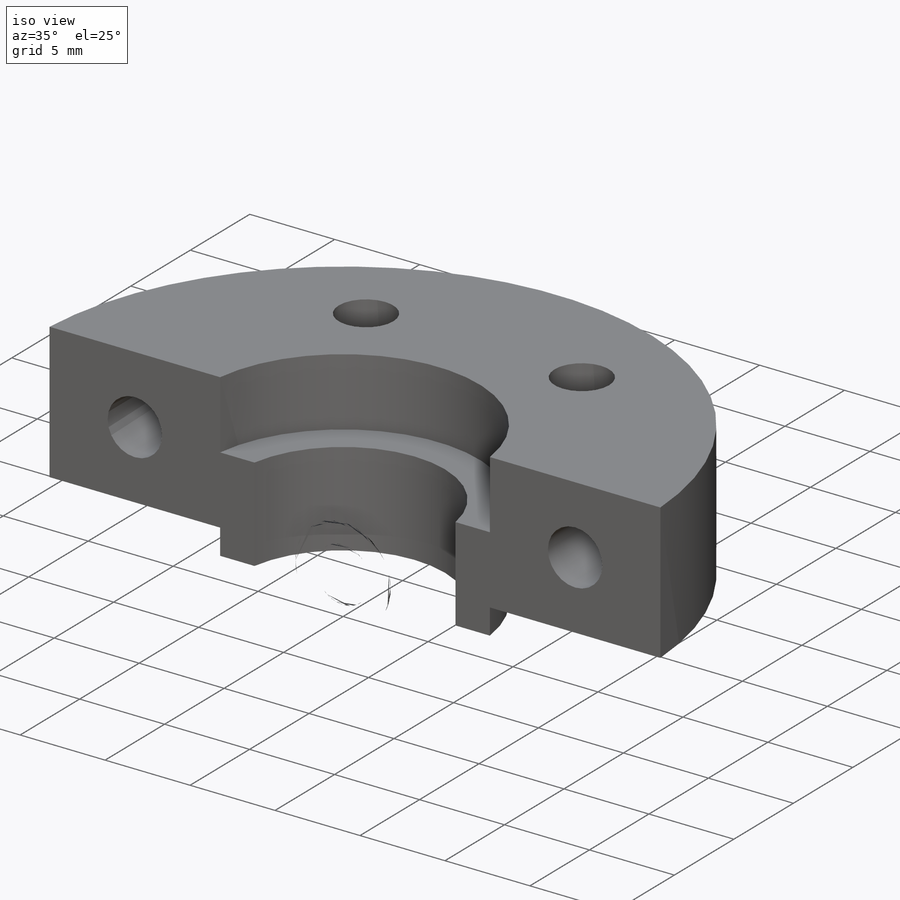
[diagram: iso view]
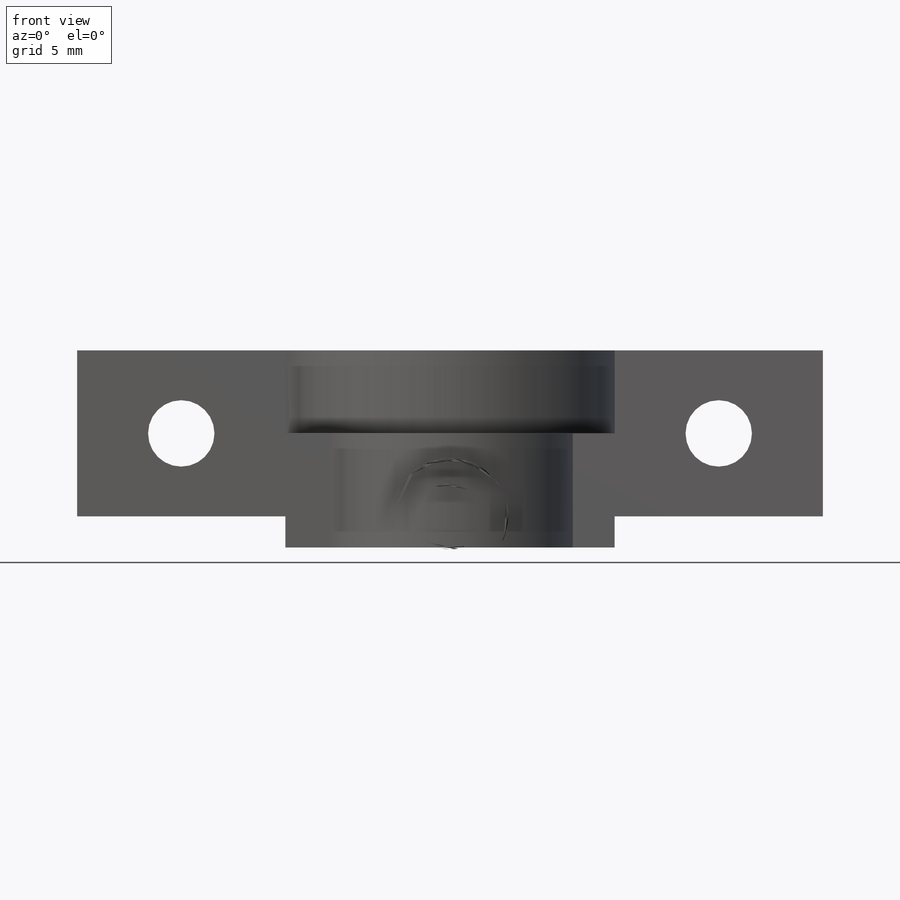
[diagram: front view]
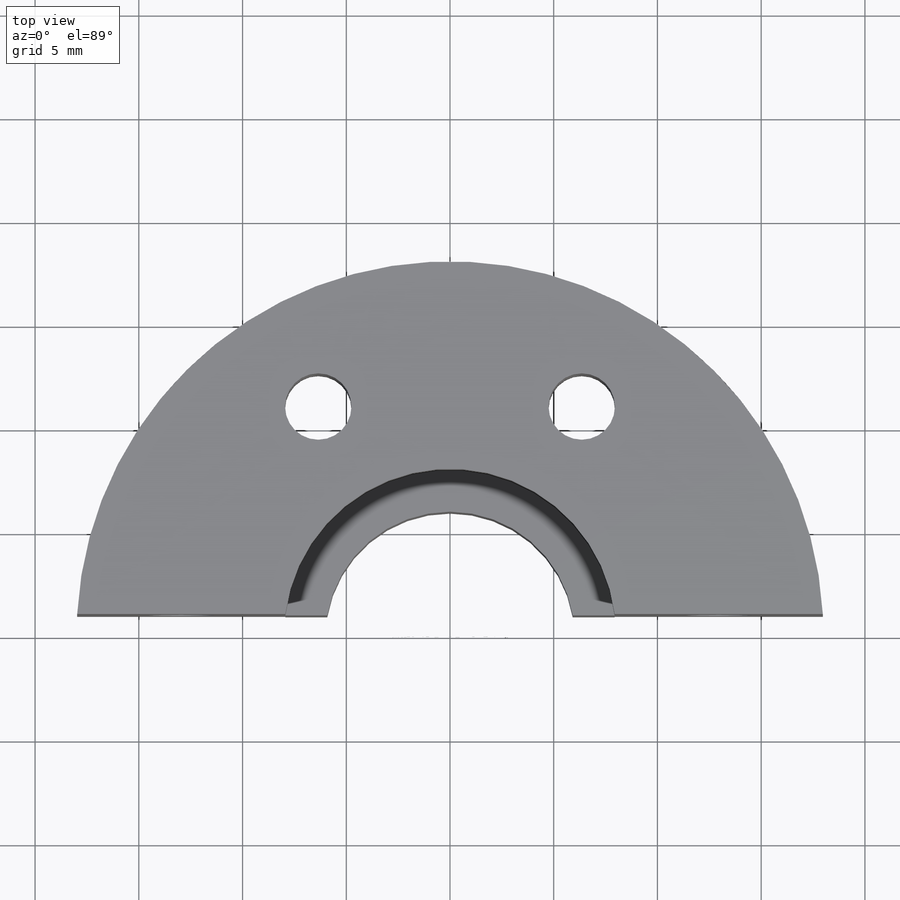
[diagram: top view]
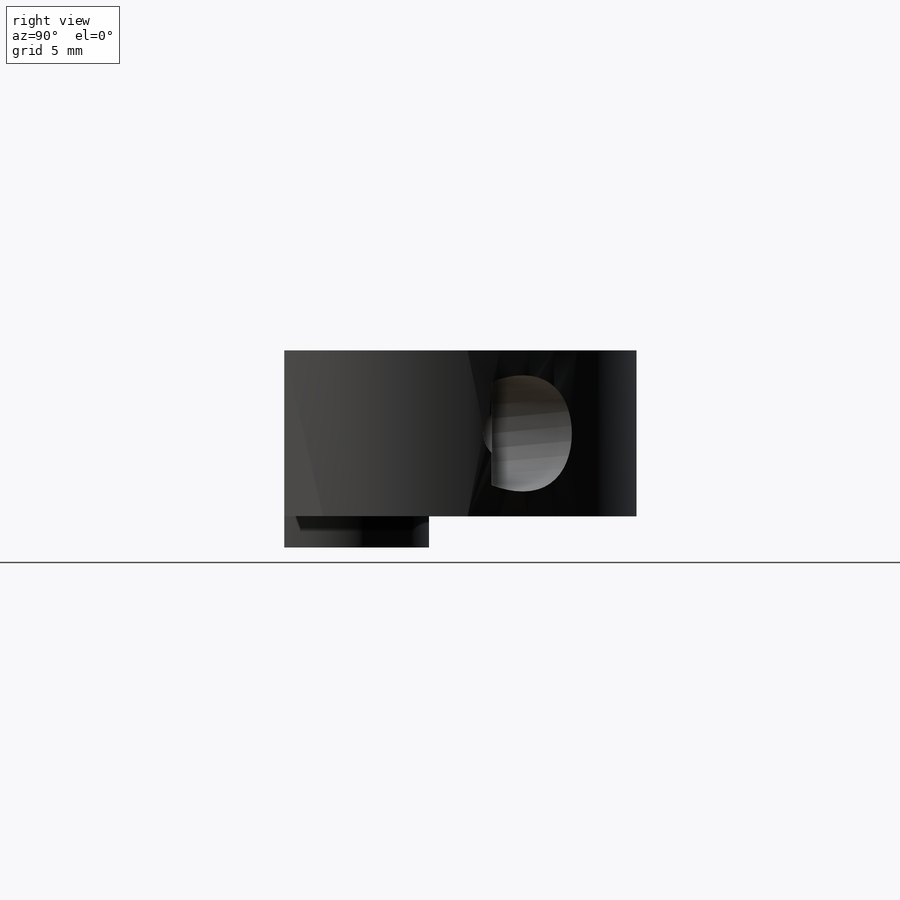
[diagram: right view]
SOLIDWORKS PART (.sldprt)
format: sldprt  version: not decoded by parser v0  size: 209,408 bytes
history: native  units: mm
features: sketch x5, cut_extrude x3, extrude x2, material x1, plane x1 (+13 scaffold rows collapsed)
feature tree (25):
  scaffold x13  (default folders/planes/origin — collapsed)
  material  "ABS"
  sketch  "Sketch1"  dims[c1.D1=16.0mm c1.D2=16.0mm c1.D3=22.0mm c1.D4=3.2mm c2.D2=10.0mm]
  extrude  "Boss-Extrude1"  Depth=8mm
  plane  "Plane1"  Offset=4mm
  sketch  "Sketch2"  dims[D1=16.0mm D2=12.0mm]
  extrude  "Boss-Extrude2"  Depth=5.5mm
  sketch  "Sketch3"  dims[D1=20.0mm D2=1.0mm D3=40.0mm]
  cut_extrude  "Cut-Extrude1"  [1 undecoded]
  sketch  "Sketch5"  dims[D1=3.2mm D2=4.0mm]
  cut_extrude  "Cut-Extrude2"  [1 undecoded]
  sketch  "Sketch6"  dims[D1=5.6mm]
  cut_extrude  "Cut-Extrude3"  Depth=10mm
decode coverage: 8 of 10 modeling features carry decoded parameters
note: 2 parameter values undecoded
note: suppression state not decoded; provenance and decode notes live in map.json
